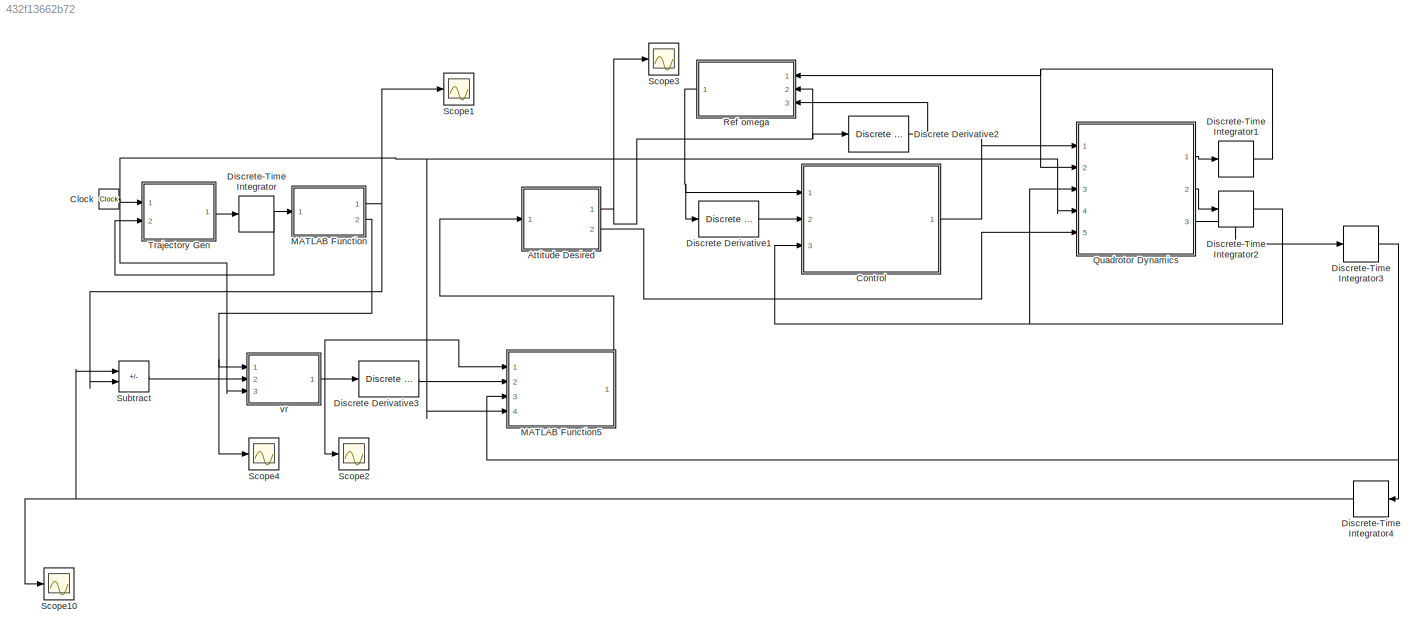
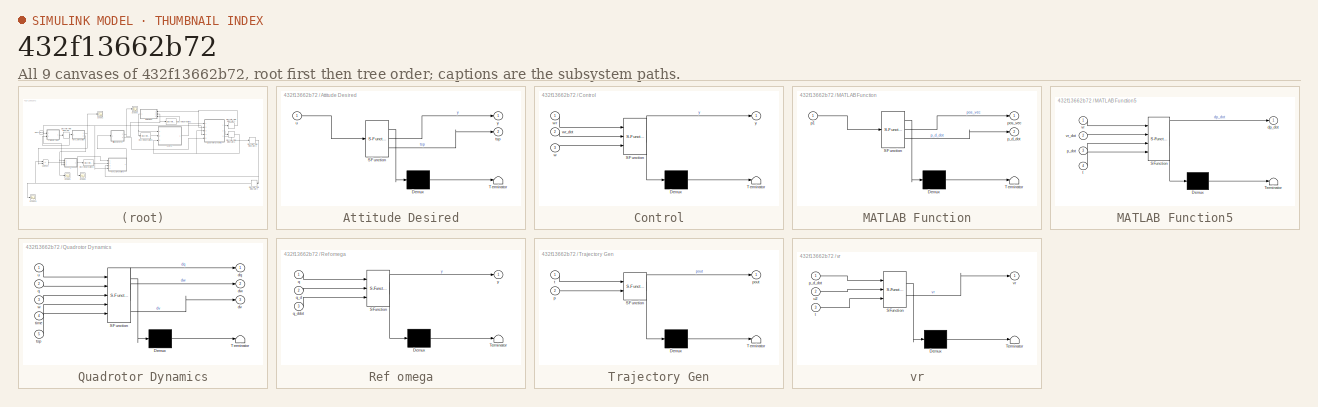
[diagram: thumbnail index - all 9 canvases of the model, root first then tree order]
MODEL slx_432f13662b72
KIND model
CONFIG AbsTol = auto
CONFIG EnableMultiTasking = off
CONFIG FixedStep = auto
CONFIG MaxStep = 0.001
CONFIG MinStep = 0.00011
CONFIG RelTol = 1e-2
CONFIG SampleTimeConstraint = Unconstrained
CONFIG SolverName = VariableStepAuto
CONFIG StartTime = 0.0
CONFIG StopTime = 100
BLOCK [SubSystem] Attitude Desired
  ErrorFcn = Stateflow.Translate.translate
  PermitHierarchicalResolution = ExplicitOnly
  Ports = [1, 2]
  RequestExecContextInheritance = off
  SFBlockType = MATLAB Function
  TreatAsAtomicUnit = on
BLOCK [Demux] Attitude Desired/ Demux 
  Outputs = 1
  Ports = [1, 1]
BLOCK [S-Function] Attitude Desired/ SFunction 
  EnableBusSupport = on
  FunctionName = sf_sfun
  PortCounts = [1 3]
  Ports = [1, 3]
  SFcnIsStateOwnerBlock = off
  SFunctionDeploymentMode = off
  Tag = Stateflow S-Function 2
BLOCK [Terminator] Attitude Desired/ Terminator 
BLOCK [Outport] Attitude Desired/tsp
  Port = 2
BLOCK [Inport] Attitude Desired/u
BLOCK [Outport] Attitude Desired/y
BLOCK [Clock] Clock
BLOCK [SubSystem] Control
  ErrorFcn = Stateflow.Translate.translate
  PermitHierarchicalResolution = ExplicitOnly
  Ports = [3, 1]
  RequestExecContextInheritance = off
  SFBlockType = MATLAB Function
  TreatAsAtomicUnit = on
BLOCK [Demux] Control/ Demux 
  Outputs = 1
  Ports = [1, 1]
BLOCK [S-Function] Control/ SFunction 
  EnableBusSupport = on
  FunctionName = sf_sfun
  PortCounts = [3 2]
  Ports = [3, 2]
  SFcnIsStateOwnerBlock = off
  SFunctionDeploymentMode = off
  Tag = Stateflow S-Function 3
BLOCK [Terminator] Control/ Terminator 
BLOCK [Inport] Control/w
  Port = 3
BLOCK [Inport] Control/wr
BLOCK [Inport] Control/wr_dot
  Port = 2
BLOCK [Outport] Control/y
BLOCK [Reference] Discrete Derivative1  REF=simulink/Discrete/Discrete Derivative
  Ports = [1, 1]
  SourceBlock = simulink/Discrete/Discrete Derivative
  SourceProductBaseCode = SL
  SourceType = Discrete Derivative
BLOCK [Reference] Discrete Derivative2  REF=simulink/Discrete/Discrete Derivative
  Ports = [1, 1]
  SourceBlock = simulink/Discrete/Discrete Derivative
  SourceProductBaseCode = SL
  SourceType = Discrete Derivative
BLOCK [Reference] Discrete Derivative3  REF=simulink/Discrete/Discrete Derivative
  Ports = [1, 1]
  SourceBlock = simulink/Discrete/Discrete Derivative
  SourceProductBaseCode = SL
  SourceType = Discrete Derivative
BLOCK [DiscreteIntegrator] Discrete-Time Integrator
  ICPrevOutput = DiscIntNeverNeededParam
  ICPrevScaledInput = DiscIntNeverNeededParam
  InitialConditionSetting = Auto
  Ports = [1, 1]
  SampleTime = -1
BLOCK [DiscreteIntegrator] Discrete-Time Integrator1
  ICPrevOutput = DiscIntNeverNeededParam
  ICPrevScaledInput = DiscIntNeverNeededParam
  InitialConditionSetting = Auto
  Ports = [1, 1]
  SampleTime = -1
BLOCK [DiscreteIntegrator] Discrete-Time Integrator2
  ICPrevOutput = DiscIntNeverNeededParam
  ICPrevScaledInput = DiscIntNeverNeededParam
  InitialConditionSetting = Auto
  Ports = [1, 1]
  SampleTime = -1
BLOCK [DiscreteIntegrator] Discrete-Time Integrator3
  ICPrevOutput = DiscIntNeverNeededParam
  ICPrevScaledInput = DiscIntNeverNeededParam
  InitialConditionSetting = Auto
  Ports = [1, 1]
  SampleTime = -1
BLOCK [DiscreteIntegrator] Discrete-Time Integrator4
  ICPrevOutput = DiscIntNeverNeededParam
  ICPrevScaledInput = DiscIntNeverNeededParam
  InitialConditionSetting = Auto
  NameLocation = top
  Ports = [1, 1]
  SampleTime = -1
BLOCK [SubSystem] MATLAB Function
  ErrorFcn = Stateflow.Translate.translate
  PermitHierarchicalResolution = ExplicitOnly
  Ports = [1, 2]
  RequestExecContextInheritance = off
  SFBlockType = MATLAB Function
  TreatAsAtomicUnit = on
BLOCK [Demux] MATLAB Function/ Demux 
  Outputs = 1
  Ports = [1, 1]
BLOCK [S-Function] MATLAB Function/ SFunction 
  EnableBusSupport = on
  FunctionName = sf_sfun
  PortCounts = [1 3]
  Ports = [1, 3]
  SFcnIsStateOwnerBlock = off
  SFunctionDeploymentMode = off
  Tag = Stateflow S-Function 6
BLOCK [Terminator] MATLAB Function/ Terminator 
BLOCK [Inport] MATLAB Function/p1
BLOCK [Outport] MATLAB Function/p_d_dot
  Port = 2
BLOCK [Outport] MATLAB Function/pos_vec
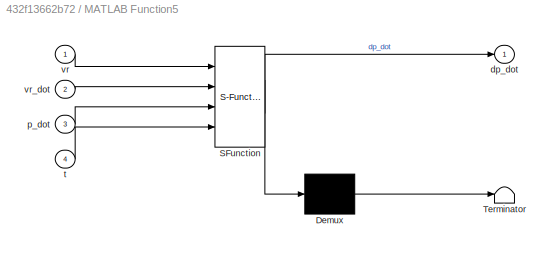
BLOCK [SubSystem] MATLAB Function5
  ErrorFcn = Stateflow.Translate.translate
  PermitHierarchicalResolution = ExplicitOnly
  Ports = [4, 1]
  RequestExecContextInheritance = off
  SFBlockType = MATLAB Function
  TreatAsAtomicUnit = on
BLOCK [Demux] MATLAB Function5/ Demux 
  Outputs = 1
  Ports = [1, 1]
BLOCK [S-Function] MATLAB Function5/ SFunction 
  EnableBusSupport = on
  FunctionName = sf_sfun
  PortCounts = [4 2]
  Ports = [4, 2]
  SFcnIsStateOwnerBlock = off
  SFunctionDeploymentMode = off
  Tag = Stateflow S-Function 12
BLOCK [Terminator] MATLAB Function5/ Terminator 
BLOCK [Outport] MATLAB Function5/dp_dot
BLOCK [Inport] MATLAB Function5/p_dot
  Port = 3
BLOCK [Inport] MATLAB Function5/t
  Port = 4
BLOCK [Inport] MATLAB Function5/vr
BLOCK [Inport] MATLAB Function5/vr_dot
  Port = 2
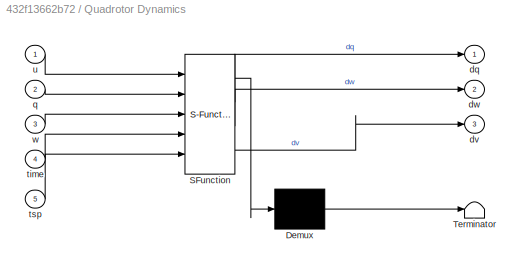
BLOCK [SubSystem] Quadrotor Dynamics
  ErrorFcn = Stateflow.Translate.translate
  PermitHierarchicalResolution = ExplicitOnly
  Ports = [5, 3]
  RequestExecContextInheritance = off
  SFBlockType = MATLAB Function
  TreatAsAtomicUnit = on
BLOCK [Demux] Quadrotor Dynamics/ Demux 
  Outputs = 1
  Ports = [1, 1]
BLOCK [S-Function] Quadrotor Dynamics/ SFunction 
  EnableBusSupport = on
  FunctionName = sf_sfun
  PortCounts = [5 4]
  Ports = [5, 4]
  SFcnIsStateOwnerBlock = off
  SFunctionDeploymentMode = off
  Tag = Stateflow S-Function 4
BLOCK [Terminator] Quadrotor Dynamics/ Terminator 
BLOCK [Outport] Quadrotor Dynamics/dq
BLOCK [Outport] Quadrotor Dynamics/dv
  Port = 3
BLOCK [Outport] Quadrotor Dynamics/dw
  Port = 2
BLOCK [Inport] Quadrotor Dynamics/q
  Port = 2
BLOCK [Inport] Quadrotor Dynamics/time
  Port = 4
BLOCK [Inport] Quadrotor Dynamics/tsp
  Port = 5
BLOCK [Inport] Quadrotor Dynamics/u
BLOCK [Inport] Quadrotor Dynamics/w
  Port = 3
BLOCK [SubSystem] Ref omega
  ErrorFcn = Stateflow.Translate.translate
  NameLocation = top
  PermitHierarchicalResolution = ExplicitOnly
  Ports = [3, 1]
  RequestExecContextInheritance = off
  SFBlockType = MATLAB Function
  TreatAsAtomicUnit = on
BLOCK [Demux] Ref omega/ Demux 
  Outputs = 1
  Ports = [1, 1]
BLOCK [S-Function] Ref omega/ SFunction 
  EnableBusSupport = on
  FunctionName = sf_sfun
  PortCounts = [3 2]
  Ports = [3, 2]
  SFcnIsStateOwnerBlock = off
  SFunctionDeploymentMode = off
  Tag = Stateflow S-Function 5
BLOCK [Terminator] Ref omega/ Terminator 
BLOCK [Inport] Ref omega/q
BLOCK [Inport] Ref omega/q_d
  Port = 2
BLOCK [Inport] Ref omega/q_ddot
  Port = 3
BLOCK [Outport] Ref omega/y
BLOCK [Scope] Scope1
  Floating = off
  NumInputPorts = 1
  Ports = [1]
  ScopeSpecificationString = Simulink.scopes.TimeScopeBlockCfg('CurrentConfiguration', extmgr.ConfigurationSet(extmgr.Configuration('Core','General UI',true),extmgr.Configuration('Core','Source UI',true),extmgr.Configuration('Sources','WiredSimulink',true,'DataLoggingVariableName','ScopeData2'),extmgr.Configuration('Visuals','Time Domain',true,'SerializedDisplays',{struct('MinYLimReal','-0.25','MaxYLimReal','2.25','YLabelReal...<+1422ch>
BLOCK [Scope] Scope10
  Floating = off
  NumInputPorts = 1
  Ports = [1]
  ScopeSpecificationString = Simulink.scopes.TimeScopeBlockCfg('CurrentConfiguration', extmgr.ConfigurationSet(extmgr.Configuration('Core','General UI',true),extmgr.Configuration('Core','Source UI',true),extmgr.Configuration('Sources','WiredSimulink',true,'DataLoggingVariableName','ScopeData5'),extmgr.Configuration('Visuals','Time Domain',true,'SerializedDisplays',{struct('MinYLimReal','-10.79245','MaxYLimReal','3.52125','YLa...<+1494ch>
BLOCK [Scope] Scope2
  Floating = off
  NumInputPorts = 1
  Ports = [1]
  ScopeSpecificationString = Simulink.scopes.TimeScopeBlockCfg('CurrentConfiguration', extmgr.ConfigurationSet(extmgr.Configuration('Core','General UI',true),extmgr.Configuration('Core','Source UI',true),extmgr.Configuration('Sources','WiredSimulink',true,'DataLoggingVariableName','ScopeData2'),extmgr.Configuration('Visuals','Time Domain',true,'SerializedDisplays',{struct('MinYLimReal','-108.71759','MaxYLimReal','47.30269','Y...<+1408ch>
BLOCK [Scope] Scope3
  Floating = off
  NumInputPorts = 1
  Ports = [1]
  ScopeSpecificationString = Simulink.scopes.TimeScopeBlockCfg('CurrentConfiguration', extmgr.ConfigurationSet(extmgr.Configuration('Core','General UI',true),extmgr.Configuration('Core','Source UI',true),extmgr.Configuration('Sources','WiredSimulink',true),extmgr.Configuration('Visuals','Time Domain',true,'SerializedDisplays',{struct('MinYLimReal','-0.21991','MaxYLimReal','0.38757','YLabelReal','','MinYLimMag','0.00000','MaxY...<+1415ch>
BLOCK [Scope] Scope4
  Floating = off
  NumInputPorts = 1
  Ports = [1]
  ScopeSpecificationString = Simulink.scopes.TimeScopeBlockCfg('CurrentConfiguration', extmgr.ConfigurationSet(extmgr.Configuration('Core','General UI',true),extmgr.Configuration('Core','Source UI',true),extmgr.Configuration('Sources','WiredSimulink',true,'DataLoggingVariableName','ScopeData3'),extmgr.Configuration('Visuals','Time Domain',true,'SerializedDisplays',{struct('MinYLimReal','-0.12509','MaxYLimReal','1.12578','YLab...<+1440ch>
BLOCK [Sum] Subtract
  IconShape = rectangular
  Inputs = +-
  Ports = [2, 1]
BLOCK [SubSystem] Trajectory Gen
  ErrorFcn = Stateflow.Translate.translate
  PermitHierarchicalResolution = ExplicitOnly
  Ports = [2, 1]
  RequestExecContextInheritance = off
  SFBlockType = MATLAB Function
  TreatAsAtomicUnit = on
BLOCK [Demux] Trajectory Gen/ Demux 
  Outputs = 1
  Ports = [1, 1]
BLOCK [S-Function] Trajectory Gen/ SFunction 
  EnableBusSupport = on
  FunctionName = sf_sfun
  PortCounts = [2 2]
  Ports = [2, 2]
  SFcnIsStateOwnerBlock = off
  SFunctionDeploymentMode = off
  Tag = Stateflow S-Function 1
BLOCK [Terminator] Trajectory Gen/ Terminator 
BLOCK [Inport] Trajectory Gen/p
  Port = 2
BLOCK [Outport] Trajectory Gen/pout
BLOCK [Inport] Trajectory Gen/t
BLOCK [SubSystem] vr
  ErrorFcn = Stateflow.Translate.translate
  PermitHierarchicalResolution = ExplicitOnly
  Ports = [3, 1]
  RequestExecContextInheritance = off
  SFBlockType = MATLAB Function
  TreatAsAtomicUnit = on
BLOCK [Demux] vr/ Demux 
  Outputs = 1
  Ports = [1, 1]
BLOCK [S-Function] vr/ SFunction 
  EnableBusSupport = on
  FunctionName = sf_sfun
  PortCounts = [3 2]
  Ports = [3, 2]
  SFcnIsStateOwnerBlock = off
  SFunctionDeploymentMode = off
  Tag = Stateflow S-Function 11
BLOCK [Terminator] vr/ Terminator 
BLOCK [Inport] vr/p_d_dot
BLOCK [Inport] vr/t
  Port = 3
BLOCK [Inport] vr/u2
  Port = 2
BLOCK [Outport] vr/vr
NET Attitude Desired:1 -> Discrete Derivative2:1, Ref omega:2, Scope3:1
LINE Attitude Desired:2 -> Quadrotor Dynamics:5
NET Clock:1 -> MATLAB Function5:4, Quadrotor Dynamics:4, Trajectory Gen:1, vr:3
LINE Control:1 -> Quadrotor Dynamics:1
LINE Discrete Derivative1:1 -> Control:2
LINE Discrete Derivative2:1 -> Ref omega:3
LINE Discrete Derivative3:1 -> MATLAB Function5:2
NET Discrete-Time Integrator1:1 -> Quadrotor Dynamics:2, Ref omega:1
NET Discrete-Time Integrator2:1 -> Control:3, Quadrotor Dynamics:3
NET Discrete-Time Integrator3:1 -> Discrete-Time Integrator4:1, MATLAB Function5:3
NET Discrete-Time Integrator4:1 -> Scope10:1, Subtract:1
NET Discrete-Time Integrator:1 -> MATLAB Function:1, Trajectory Gen:2
LINE MATLAB Function5:1 -> Attitude Desired:1
NET MATLAB Function:1 -> Scope1:1, Subtract:2
NET MATLAB Function:2 -> Scope4:1, vr:1
LINE Quadrotor Dynamics:1 -> Discrete-Time Integrator1:1
LINE Quadrotor Dynamics:2 -> Discrete-Time Integrator2:1
LINE Quadrotor Dynamics:3 -> Discrete-Time Integrator3:1
NET Ref omega:1 -> Control:1, Discrete Derivative1:1
LINE Subtract:1 -> vr:2
LINE Trajectory Gen:1 -> Discrete-Time Integrator:1
NET vr:1 -> Discrete Derivative3:1, MATLAB Function5:1, Scope2:1
note: NET lines group one-source signal fan-out (src -> all destinations, sorted); 1:1 wires keep LINE
CHART Trajectory Gen states=1 transitions=1
  STATE_LABEL 'eML_blk_kernel()'
  STATE_LABEL 'SCRIPT:\nfunction pout = fcn(t,p)\ndt = 0.01;\ntime = t;\nif time < 0.1\n    present_state = [0;0;0;0;0;0];\nend\npresent_state = p;\n%p1 vector contains the position and velocity\nx_present = [present_state(1);present_state(2)];\ny_present = [present_state(3);present_state(4)];\nz_present = [present_state(5);present_state(6)];\n\ndx = x_pos(time,x_present);\ndy = y_pos(time,y_present);\ndz = z_pos(time,z_presen...<+431ch>'
CHART Attitude Desired states=1 transitions=1
  STATE_LABEL 'eML_blk_kernel()'
  STATE_LABEL 'SCRIPT:\nfunction [y,tsp]  = fcn(u)\n\n\nX_bar = u(1);\nY_bar = u(2);\nZ_bar = u(3) + 9.81;\n\nFd = sqrt((X_bar)^2 + (Y_bar)^2 + (Z_bar)^2 );\n\npsi_d = 0;\nphi_d = asin(-(Y_bar)/Fd);\ntheta_d = atan2((X_bar)/Z_bar,1);\n\nq_d = [theta_d;phi_d;psi_d];\ny = q_d ;\ntsp = [0;0;Fd];\n\n'
CHART Control states=1 transitions=1
  STATE_LABEL 'eML_blk_kernel()'
  STATE_LABEL 'SCRIPT:\nfunction y = fcn(wr, wr_dot, w)\nJ = [1 0 0; 0 1 0; 0 0 1];\nK = 4.4.*[1 0 0; 0 1 0; 0 0 1];\n\n\n\ncross = J*w;\ncross_skew = [0 -cross(3) cross(2);cross(3) 0 -cross(1);-cross(2) cross(1) 0];\nu = J*wr_dot - cross_skew*wr - K*(w - wr);\n\ny = u;\n\n'
CHART Quadrotor Dynamics states=1 transitions=1
  STATE_LABEL 'eML_blk_kernel()'
  STATE_LABEL 'SCRIPT:\nfunction [dq,dw,dv] = fcn(u, q, w, time, tsp)\ndt = 0.01;\nif time < 0.01\n    w = [0;0;0];\n    q = [0;0;0];\nend\n\ndw = omega(w,u);\ndq = attitude(q,w);\ntheta = q(1);\nphi = q(2);\npsi = q(3);\nZ_q = [1 sin(phi)*tan(theta) cos(phi)*tan(theta);0 cos(phi) -sin(phi);0 sin(phi)*sec(theta) cos(phi)*sec(theta)];\ndv = [0;0;-9.81] + (Z_q)*tsp;\n\nend\n\nfunction dw = omega(w,u)\nJ = [1 0 0;0 1 0;0 0 1];\nomega ...<+584ch>'
CHART Ref omega states=1 transitions=1
  STATE_LABEL 'eML_blk_kernel()'
  STATE_LABEL 'SCRIPT:\nfunction y = fcn(q, q_d, q_ddot)\ntheta = q(1);\nphi = q(2);\npsi = q(3);\natt = [theta;phi;psi];\nL = [1 0 0;0 1 0;0 0 1];%lambda parameter\nJ = [1 0 0;0 1 0;0 0 1];%inertia tensor\n\nZ_q = [1 sin(phi)*tan(theta) cos(phi)*tan(theta);0 cos(phi) -sin(phi);0 sin(phi)*sec(theta) cos(phi)*sec(theta)];\nw_r = Z_q\\q_ddot + Z_q\\L*(q_d - att);\n\ny = w_r;\n'
CHART MATLAB Function states=1 transitions=1
  STATE_LABEL 'eML_blk_kernel()'
  STATE_LABEL 'SCRIPT:\nfunction [pos_vec,p_d_dot] = fcn(p1)\npos_vec = [p1(1);p1(3);p1(5)];\np_d_dot = [p1(2);p1(4);p1(6)];\n\n'
CHART vr states=1 transitions=1
  STATE_LABEL 'eML_blk_kernel()'
  STATE_LABEL 'SCRIPT:\nfunction vr = fcn(p_d_dot,u2,t)\nlambda = 1;\n\nvr = p_d_dot - lambda*(u2);\n\n'
CHART MATLAB Function5 states=1 transitions=1
  STATE_LABEL 'eML_blk_kernel()'
  STATE_LABEL 'SCRIPT:\nfunction dp_dot = fcn(vr,vr_dot,p_dot,t)\nif t < 0.1\n    dp_dot = [0;0;0];\nend\nKv = 1;\nif t < 150\ntemp = -Kv*(p_dot - vr) + vr_dot;\ndp_dot = temp;\nelse\ndp_dot = [0;0;0];\nend'
CHART  states=0 transitions=0
CHART  states=0 transitions=0
CHART  states=0 transitions=0
CHART  states=0 transitions=0
CHART  states=0 transitions=0
CHART  states=0 transitions=0
CHART  states=0 transitions=0
CHART  states=0 transitions=0
